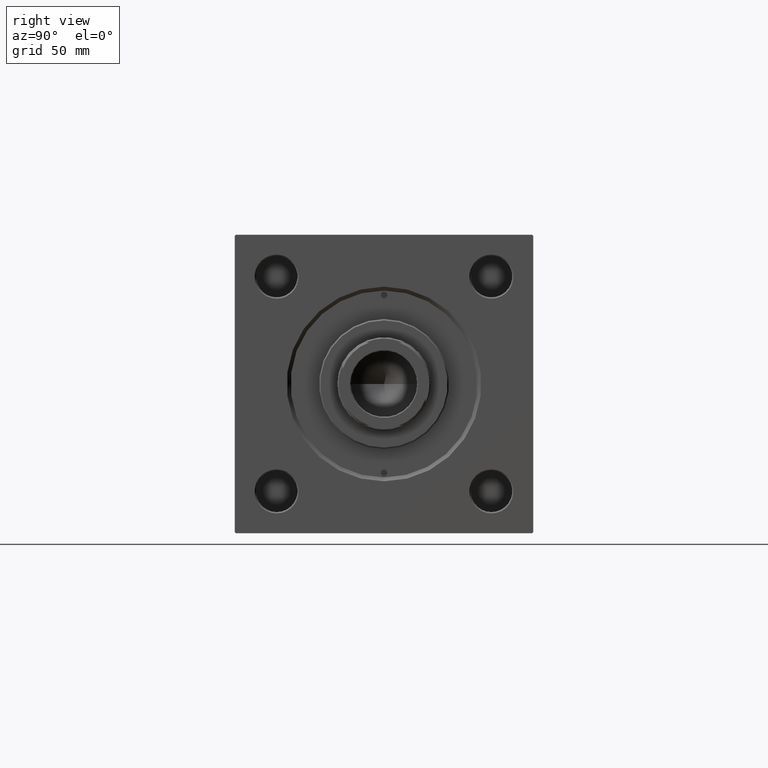
[diagram: clean part render]
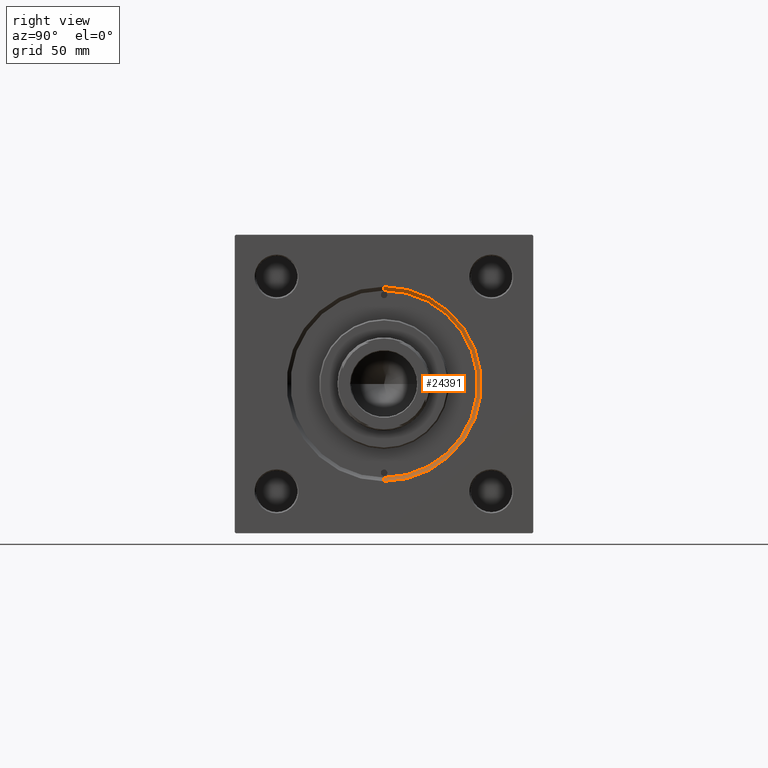
[diagram: same view with one face highlighted and labeled with its STEP entity id]
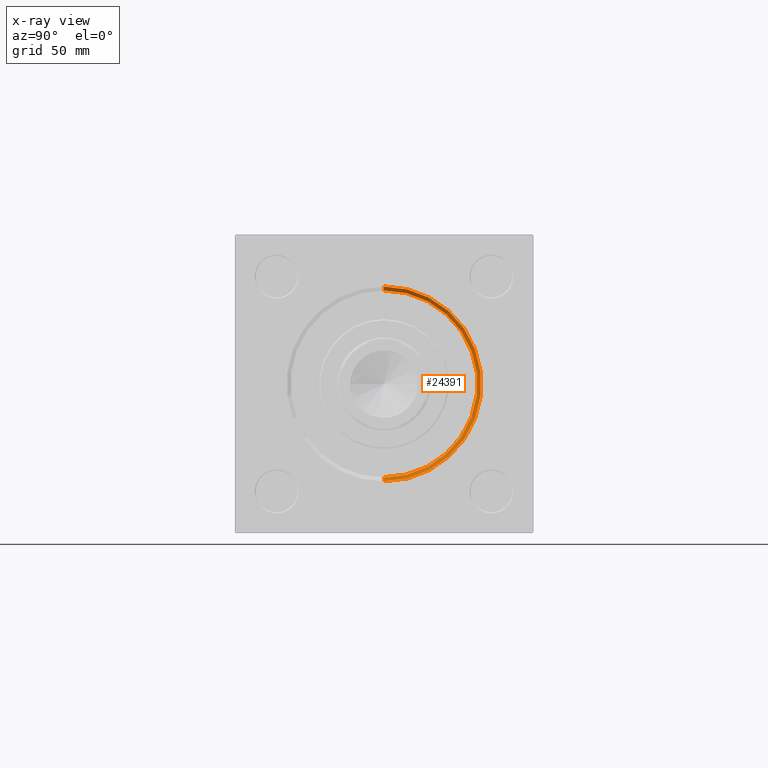
[diagram: x-ray of the same camera — body ghosted, the highlighted face saturated]
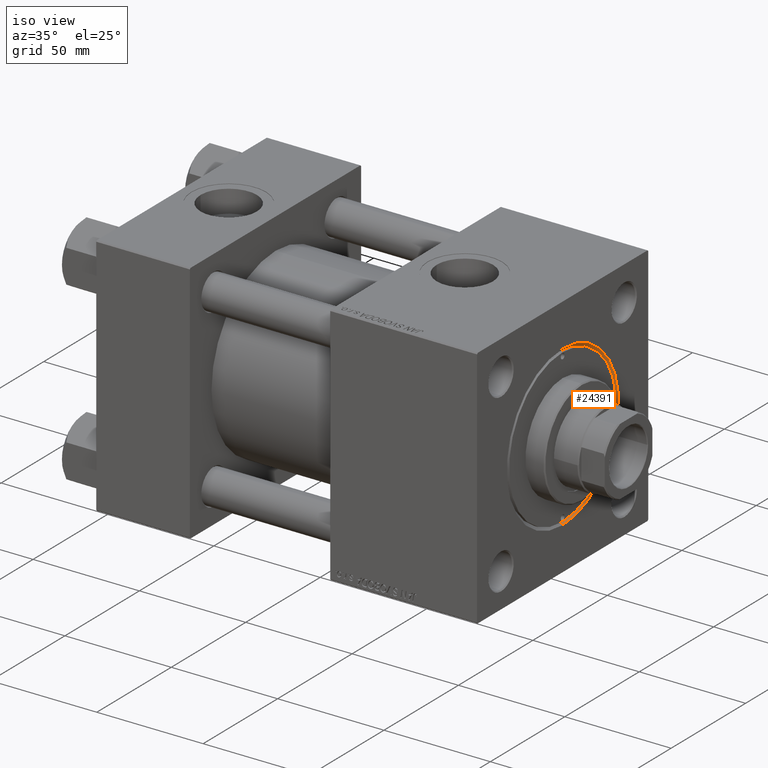
[diagram: same view with one face highlighted and labeled with its STEP entity id]
A machine part, right view. The second image highlights one B-rep face of the part: STEP entity #24391.
The next image is the same camera in x-ray: the body ghosted, the highlighted face saturated — about 0% of this face is hidden behind the body in this view.
A second angle (iso view) of the same face is appended — the face is thin or edge-on in the first view.
In plain terms, the highlighted conical surface has half-angle 45 deg.
Its self-contained STEP definition (entity closure, byte-faithful):
#695 = AXIS2_PLACEMENT_3D ( 'NONE', #45322, #48923, #13762 ) ;
#1039 = CARTESIAN_POINT ( 'NONE',  ( 177.4999999999999716, 0.000000000000000000, 0.000000000000000000 ) ) ;
#1327 = DIRECTION ( 'NONE',  ( 0.7071067811865524577, 0.000000000000000000, -0.7071067811865426878 ) ) ;
#1347 = ORIENTED_EDGE ( 'NONE', *, *, #49823, .F. ) ;
#2336 = VERTEX_POINT ( 'NONE', #6474 ) ;
#4570 = EDGE_CURVE ( 'NONE', #2336, #36540, #20894, .T. ) ;
#5896 = ORIENTED_EDGE ( 'NONE', *, *, #17194, .F. ) ;
#6259 = CARTESIAN_POINT ( 'NONE',  ( 179.0000000000000000, 0.000000000000000000, 0.000000000000000000 ) ) ;
#6474 = CARTESIAN_POINT ( 'NONE',  ( 177.4999999999999716, 0.000000000000000000, -36.00000000000000000 ) ) ;
#7547 = CIRCLE ( 'NONE', #24798, 36.00000000000000000 ) ;
#8102 = CARTESIAN_POINT ( 'NONE',  ( 179.0000000000000000, 4.592425496802575156E-15, 37.50000000000000711 ) ) ;
#10704 = DIRECTION ( 'NONE',  ( 0.7071067811865524577, 8.659560562354873694E-17, 0.7071067811865426878 ) ) ;
#13762 = DIRECTION ( 'NONE',  ( 0.000000000000000000, 0.000000000000000000, -1.000000000000000000 ) ) ;
#14590 = VERTEX_POINT ( 'NONE', #33246 ) ;
#14770 = DIRECTION ( 'NONE',  ( 0.000000000000000000, 0.000000000000000000, 1.000000000000000000 ) ) ;
#16222 = VERTEX_POINT ( 'NONE', #8102 ) ;
#17194 = EDGE_CURVE ( 'NONE', #16222, #36540, #39008, .T. ) ;
#20894 = LINE ( 'NONE', #36558, #46896 ) ;
#22278 = LINE ( 'NONE', #37164, #32879 ) ;
#24391 = ADVANCED_FACE ( 'NONE', ( #37381 ), #35165, .F. ) ;
#24798 = AXIS2_PLACEMENT_3D ( 'NONE', #1039, #37027, #32670 ) ;
#25570 = EDGE_LOOP ( 'NONE', ( #1347, #30059, #26441, #5896 ) ) ;
#26316 = DIRECTION ( 'NONE',  ( -1.000000000000000000, 0.000000000000000000, -0.000000000000000000 ) ) ;
#26441 = ORIENTED_EDGE ( 'NONE', *, *, #4570, .T. ) ;
#30059 = ORIENTED_EDGE ( 'NONE', *, *, #32668, .F. ) ;
#31655 = AXIS2_PLACEMENT_3D ( 'NONE', #6259, #26316, #14770 ) ;
#32668 = EDGE_CURVE ( 'NONE', #2336, #14590, #7547, .T. ) ;
#32670 = DIRECTION ( 'NONE',  ( 0.000000000000000000, 0.000000000000000000, 1.000000000000000000 ) ) ;
#32879 = VECTOR ( 'NONE', #10704, 1000.000000000000000 ) ;
#33246 = CARTESIAN_POINT ( 'NONE',  ( 177.4999999999999716, 4.408728476930470856E-15, 36.00000000000000000 ) ) ;
#35165 = CONICAL_SURFACE ( 'NONE', #695, 36.00000000000000000, 0.7853981633974415066 ) ;
#36133 = CARTESIAN_POINT ( 'NONE',  ( 179.0000000000000000, 0.000000000000000000, -37.50000000000000711 ) ) ;
#36540 = VERTEX_POINT ( 'NONE', #36133 ) ;
#36558 = CARTESIAN_POINT ( 'NONE',  ( 177.4999999999999716, 0.000000000000000000, -36.00000000000000000 ) ) ;
#37027 = DIRECTION ( 'NONE',  ( 1.000000000000000000, 0.000000000000000000, 0.000000000000000000 ) ) ;
#37164 = CARTESIAN_POINT ( 'NONE',  ( 177.4999999999999716, 4.408728476930470856E-15, 36.00000000000000000 ) ) ;
#37381 = FACE_OUTER_BOUND ( 'NONE', #25570, .T. ) ;
#39008 = CIRCLE ( 'NONE', #31655, 37.50000000000000711 ) ;
#45322 = CARTESIAN_POINT ( 'NONE',  ( 177.4999999999999716, 0.000000000000000000, 0.000000000000000000 ) ) ;
#46896 = VECTOR ( 'NONE', #1327, 1000.000000000000000 ) ;
#48923 = DIRECTION ( 'NONE',  ( 1.000000000000000000, 0.000000000000000000, 0.000000000000000000 ) ) ;
#49823 = EDGE_CURVE ( 'NONE', #14590, #16222, #22278, .T. ) ;